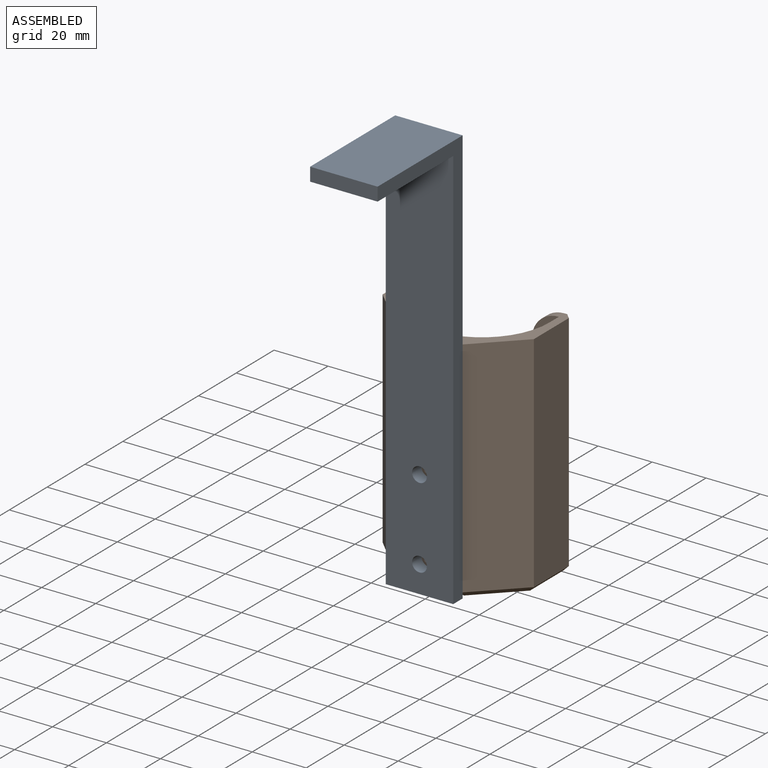
[diagram: assembled view]
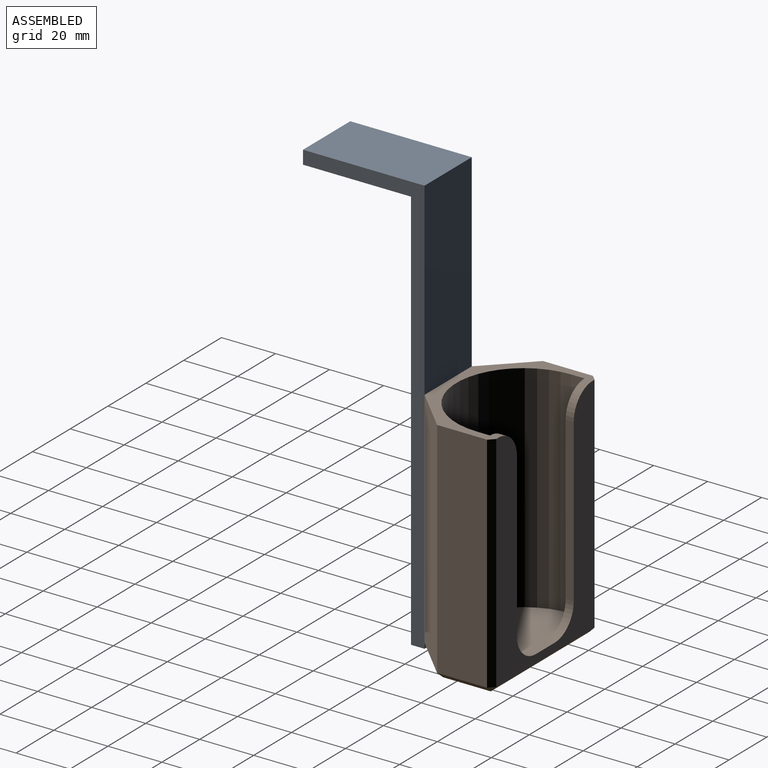
[diagram: assembled view, second angle]
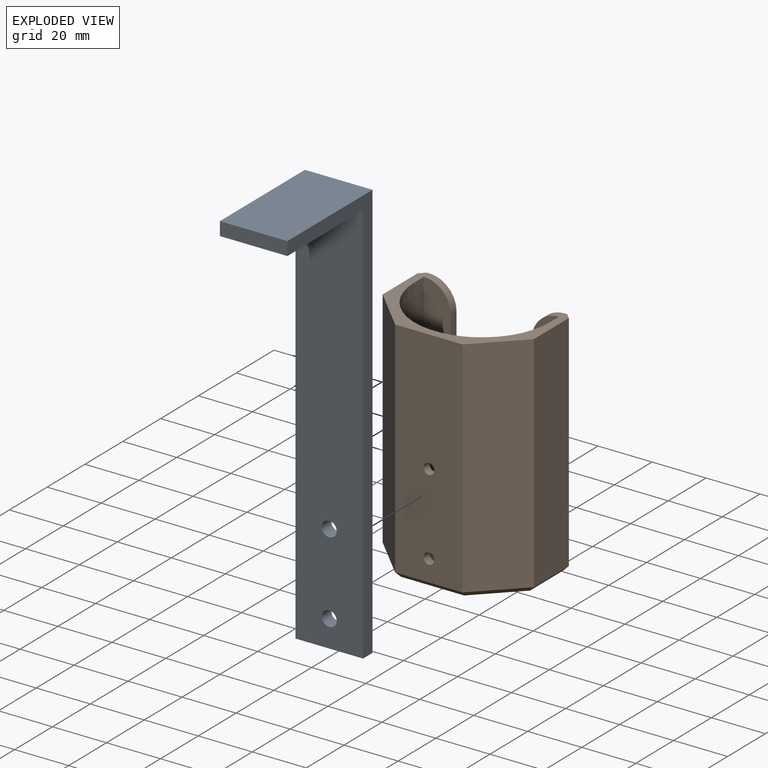
[diagram: exploded view]
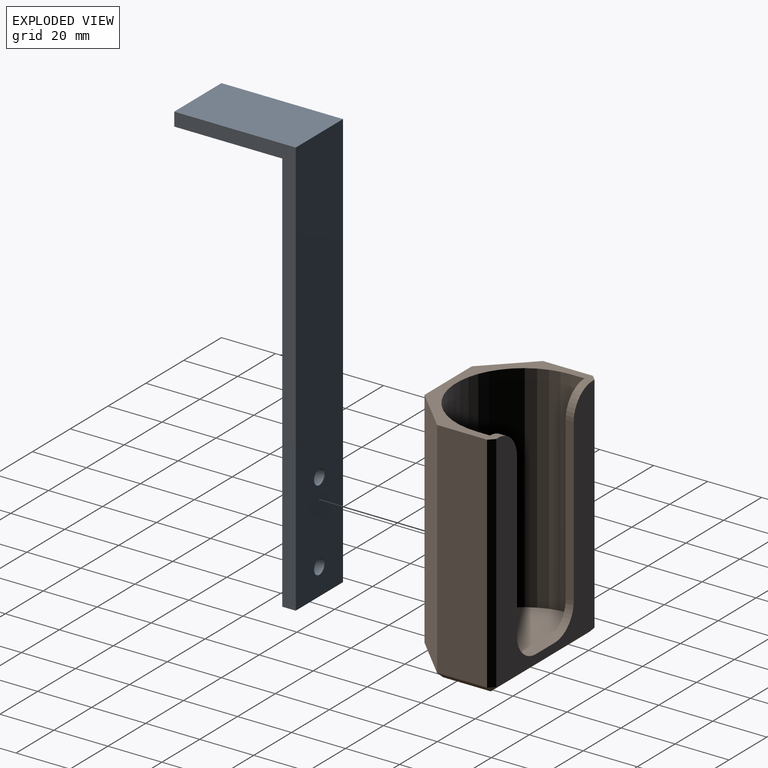
[diagram: exploded view, second angle]
ASSEMBLY  parts=2 mates=2
PART A: 10 faces, bbox 25x45x155 mm
  f0: plane 45x25mm, normal (0,0,1), area 1125mm2, adj f1,f5,f6,f7
  f1: plane 25x5mm, normal (0,-1,0), area 125mm2, adj f0,f2,f6,f7
  f2: plane 40x25mm, normal (0,0,-1), area 1000mm2, adj f1,f3,f6,f7
  f3: plane 150x25mm, normal (0,-1,0), area 3702.5mm2, adj f2,f4,f6,f7,f8,f9
  f4: plane 25x5mm, normal (0,0,-1), area 125mm2, adj f3,f5,f6,f7
  f5: plane 155x25mm, normal (0,1,0), area 3827.5mm2, adj f0,f4,f6,f7,f8,f9
  f6: plane 155x45mm, normal (1,0,0), area 975mm2, adj f0,f1,f2,f3,f4,f5
  f7: plane 155x45mm, normal (-1,0,0), area 975mm2, adj f0,f1,f2,f3,f4,f5
  f8: cylinder r=2.75mm len=5.5mm, axis (0,1,0), area 86.4mm2, adj f3,f5
  f9: cylinder r=2.75mm len=5.5mm, axis (0,1,0), area 86.4mm2, adj f3,f5
PART B: 32 faces, bbox 56x36x85 mm
  f0: plane 56x36mm, normal (0,0,1), area 390mm2, adj f1,f2,f3,f4,f10,f11,f12,f14
  f1: plane 83x18.5mm, normal (1,0,0), area 1535.5mm2, adj f0,f15,f22,f23
  f2: plane 83x52mm, normal (0,1,0), area 1916mm2, adj f0,f7,f8,f13,f16,f17,f18,f19
  f3: plane 83x18.5mm, normal (-1,0,0), area 1535.5mm2, adj f0,f14,f26,f29
  f4: plane 83x25mm, normal (0,-1,0), area 2049.9mm2, adj f0,f14,f15,f21,f30,f31
  f5: plane 52x32mm, normal (0,0,-1), area 1458.7mm2, adj f20,f21,f22,f24,f26,f27
  f6: plane 80x20mm, normal (0,-1,0), area 800mm2, adj f7,f12,f13,f17,f19
  f7: plane 60x3mm, normal (-1,0,0), area 180mm2, adj f2,f6,f17,f19
  f8: plane 60x3mm, normal (1,0,0), area 180mm2, adj f2,f9,f16,f18
  f9: plane 80x20mm, normal (0,-1,0), area 800mm2, adj f8,f10,f13,f16,f18
  f10: plane 80x5mm, normal (1,0,0), area 400mm2, adj f0,f9,f11,f13
  f11: cylinder r=25mm len=80mm, axis (0,0,1), area 6258mm2, adj f0,f10,f12,f13,f30,f31
  f12: plane 80x5mm, normal (-1,0,0), area 400mm2, adj f0,f6,f11,f13
  f13: plane 50x33mm, normal (0,0,1), area 1261.7mm2, adj f2,f6,f9,f10,f11,f12,f18,f19
  f14: plane 83x15.5mm, normal (-0.71,-0.71,0), area 1819.4mm2, adj f0,f3,f4,f24
  f15: plane 83x15.5mm, normal (0.71,-0.71,0), area 1819.4mm2, adj f0,f1,f4,f20
  f16: cylinder r=10mm len=10mm, axis (0,1,0), area 47.1mm2, adj f0,f2,f8,f9
  f17: cylinder r=10mm len=10mm, axis (0,-1,0), area 47.1mm2, adj f0,f2,f6,f7
  f18: cylinder r=10mm len=10mm, axis (0,-1,0), area 47.1mm2, adj f2,f8,f9,f13
  f19: cylinder r=10mm len=10mm, axis (0,1,0), area 47.1mm2, adj f2,f6,f7,f13
  f20: plane 16.33x16.33mm, normal (0.5,-0.5,-0.71), area 59.7mm2, adj f5,f15,f21,f22
  f21: plane 25x2mm, normal (0,-0.71,-0.71), area 68.4mm2, adj f4,f5,f20,f24
  f22: plane 18.5x2mm, normal (0.71,0,-0.71), area 51.2mm2, adj f1,f5,f20,f25
  f23: plane 83x2mm, normal (0.71,0.71,0), area 234.8mm2, adj f0,f1,f2,f25
  f24: plane 16.33x16.33mm, normal (-0.5,-0.5,-0.71), area 59.7mm2, adj f5,f14,f21,f26
  f25: plane 2x2mm, normal (0.58,0.58,-0.58), area 3.5mm2, adj f22,f23,f27
  f26: plane 18.5x2mm, normal (-0.71,0,-0.71), area 51.2mm2, adj f3,f5,f24,f28
  f27: plane 52x2mm, normal (0,0.71,-0.71), area 147.1mm2, adj f2,f5,f25,f28
  f28: plane 2x2mm, normal (-0.58,0.58,-0.58), area 3.5mm2, adj f26,f27,f29
  f29: plane 83x2mm, normal (-0.71,0.71,0), area 234.8mm2, adj f0,f2,f3,f28
  f30: cylinder r=2mm len=4mm, axis (0,-1,0), area 38.2mm2, adj f4,f11
  f31: cylinder r=2mm len=4mm, axis (0,-1,0), area 38.2mm2, adj f4,f11
PLACE A t=(0,-23,-10)mm
PLACE B at identity fixed
MATE planar B.f4 <-> A.f5  axis (0,-1,0) through (0,-18,-41.27)mm
MATE planar B.f5 <-> A.f4  axis (0,0,-1) through (0,1.58,-85)mm
